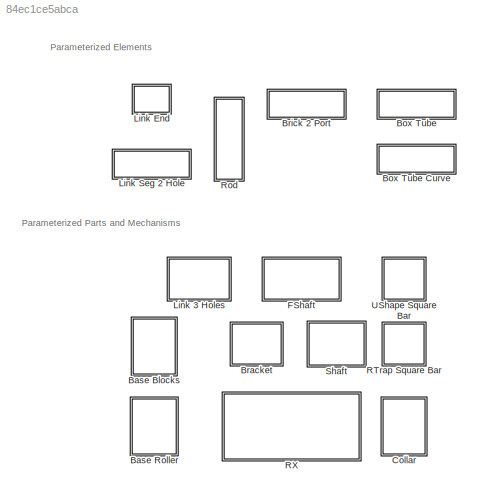
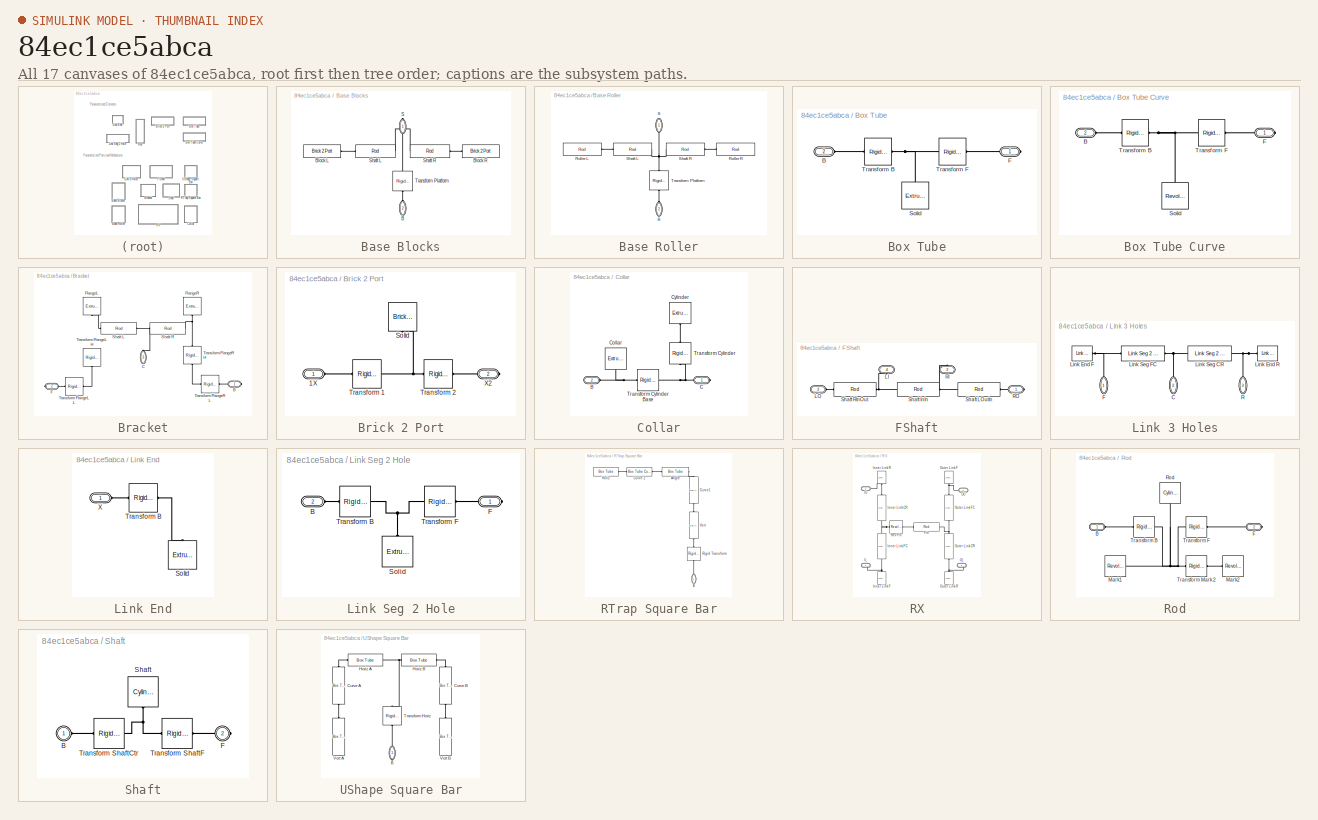
[diagram: thumbnail index - all 17 canvases of the model, root first then tree order]
MODEL slx_84ec1ce5abca
KIND library
CONFIG AbsTol = auto
CONFIG EnableMultiTasking = on
CONFIG FixedStep = auto
CONFIG MaxStep = auto
CONFIG MinStep = auto
CONFIG RelTol = 1e-3
CONFIG SampleTimeConstraint = Unconstrained
CONFIG Solver = ode45
CONFIG SolverName = ode45
CONFIG StartTime = 0.0
CONFIG StopTime = 10.0
BLOCK [SubSystem] Base Blocks
  NameLocation = left
  Ports = [0, 0, 0, 0, 0, 1, 1]
  RequestExecContextInheritance = off
BLOCK [PMIOPort] Base Blocks/B
  NameLocation = right
  Port = 2
  Side = Left
BLOCK [Reference] Base Blocks/Block L  REF=$bdroot/Brick 2 Port
  Ports = [0, 0, 0, 0, 0, 1, 1]
  SourceBlock = $bdroot/Brick 2 Port
  SourceType = Brick with 2 Interface Frames
BLOCK [Reference] Base Blocks/Block R  REF=$bdroot/Brick 2 Port
  Ports = [0, 0, 0, 0, 0, 1, 1]
  SourceBlock = $bdroot/Brick 2 Port
  SourceType = Brick with 2 Interface Frames
BLOCK [PMIOPort] Base Blocks/S
  NameLocation = right
  Side = Right
BLOCK [Reference] Base Blocks/Shaft L  REF=$bdroot/Rod
  Ports = [0, 0, 0, 0, 0, 1, 1]
  SourceBlock = $bdroot/Rod
  SourceType = Rod
BLOCK [Reference] Base Blocks/Shaft R  REF=$bdroot/Rod
  Ports = [0, 0, 0, 0, 0, 1, 1]
  SourceBlock = $bdroot/Rod
  SourceType = Rod
BLOCK [Reference] Base Blocks/Transform Platform  REF=sm_lib/Frames and
Transforms/Rigid
Transform
  NameLocation = left
  Ports = [0, 0, 0, 0, 0, 1, 1]
  SourceBlock = sm_lib/Frames and\nTransforms/Rigid\nTransform
  SourceProductBaseCode = MS
  SourceType = Rigid\nTransform
BLOCK [SubSystem] Base Roller
  NameLocation = left
  Ports = [0, 0, 0, 0, 0, 1, 1]
  RequestExecContextInheritance = off
BLOCK [PMIOPort] Base Roller/B
  NameLocation = right
  Port = 2
  Side = Left
BLOCK [Reference] Base Roller/Roller L  REF=$bdroot/Rod
  Ports = [0, 0, 0, 0, 0, 1, 1]
  SourceBlock = $bdroot/Rod
  SourceType = Rod
BLOCK [Reference] Base Roller/Roller R  REF=$bdroot/Rod
  Ports = [0, 0, 0, 0, 0, 1, 1]
  SourceBlock = $bdroot/Rod
  SourceType = Rod
BLOCK [PMIOPort] Base Roller/S
  NameLocation = right
  Side = Right
BLOCK [Reference] Base Roller/Shaft L  REF=$bdroot/Rod
  Ports = [0, 0, 0, 0, 0, 1, 1]
  SourceBlock = $bdroot/Rod
  SourceType = Rod
BLOCK [Reference] Base Roller/Shaft R  REF=$bdroot/Rod
  Ports = [0, 0, 0, 0, 0, 1, 1]
  SourceBlock = $bdroot/Rod
  SourceType = Rod
BLOCK [Reference] Base Roller/Transform Platform  REF=sm_lib/Frames and
Transforms/Rigid
Transform
  NameLocation = left
  Ports = [0, 0, 0, 0, 0, 1, 1]
  SourceBlock = sm_lib/Frames and\nTransforms/Rigid\nTransform
  SourceProductBaseCode = MS
  SourceType = Rigid\nTransform
BLOCK [SubSystem] Box Tube
  Ports = [0, 0, 0, 0, 0, 1, 1]
  RequestExecContextInheritance = off
BLOCK [SubSystem] Box Tube Curve
  Ports = [0, 0, 0, 0, 0, 1, 1]
  RequestExecContextInheritance = off
BLOCK [PMIOPort] Box Tube Curve/B
  Port = 2
  Side = Left
BLOCK [PMIOPort] Box Tube Curve/F
  Side = Right
BLOCK [Reference] Box Tube Curve/Solid  REF=sm_lib/Body Elements/Revolved Solid
  NameLocation = right
  Ports = [0, 0, 0, 0, 0, 0, 1]
  SourceBlock = sm_lib/Body Elements/Revolved Solid
  SourceProductBaseCode = MS
  SourceType = Revolved Solid
BLOCK [Reference] Box Tube Curve/Transform B  REF=sm_lib/Frames and
Transforms/Rigid
Transform
  Ports = [0, 0, 0, 0, 0, 1, 1]
  SourceBlock = sm_lib/Frames and\nTransforms/Rigid\nTransform
  SourceProductBaseCode = MS
  SourceType = Rigid\nTransform
BLOCK [Reference] Box Tube Curve/Transform F  REF=sm_lib/Frames and
Transforms/Rigid
Transform
  Ports = [0, 0, 0, 0, 0, 1, 1]
  SourceBlock = sm_lib/Frames and\nTransforms/Rigid\nTransform
  SourceProductBaseCode = MS
  SourceType = Rigid\nTransform
BLOCK [PMIOPort] Box Tube/B
  Port = 2
  Side = Left
BLOCK [PMIOPort] Box Tube/F
  Side = Right
BLOCK [Reference] Box Tube/Solid  REF=sm_lib/Body Elements/Extruded Solid
  NameLocation = left
  Ports = [0, 0, 0, 0, 0, 0, 1]
  SourceBlock = sm_lib/Body Elements/Extruded Solid
  SourceProductBaseCode = MS
  SourceType = Extruded Solid
BLOCK [Reference] Box Tube/Transform B  REF=sm_lib/Frames and
Transforms/Rigid
Transform
  Ports = [0, 0, 0, 0, 0, 1, 1]
  SourceBlock = sm_lib/Frames and\nTransforms/Rigid\nTransform
  SourceProductBaseCode = MS
  SourceType = Rigid\nTransform
BLOCK [Reference] Box Tube/Transform F  REF=sm_lib/Frames and
Transforms/Rigid
Transform
  Ports = [0, 0, 0, 0, 0, 1, 1]
  SourceBlock = sm_lib/Frames and\nTransforms/Rigid\nTransform
  SourceProductBaseCode = MS
  SourceType = Rigid\nTransform
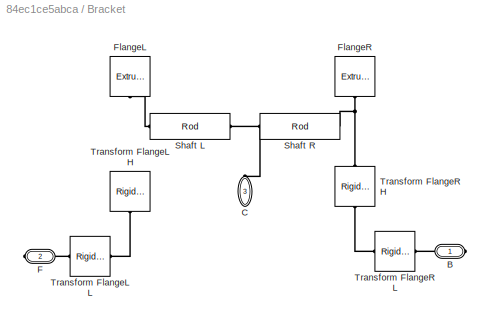
BLOCK [SubSystem] Bracket
  NameLocation = left
  Ports = [0, 0, 0, 0, 0, 1, 2]
  RequestExecContextInheritance = off
BLOCK [PMIOPort] Bracket/B
  NameLocation = top
  Side = Right
BLOCK [PMIOPort] Bracket/C
  NameLocation = left
  Port = 3
  Side = Left
BLOCK [PMIOPort] Bracket/F
  NameLocation = top
  Port = 2
  Side = Right
BLOCK [Reference] Bracket/FlangeL  REF=sm_lib/Body Elements/Extruded Solid
  NameLocation = left
  Ports = [0, 0, 0, 0, 0, 0, 1]
  SourceBlock = sm_lib/Body Elements/Extruded Solid
  SourceProductBaseCode = MS
  SourceType = Extruded Solid
BLOCK [Reference] Bracket/FlangeR  REF=sm_lib/Body Elements/Extruded Solid
  NameLocation = right
  Ports = [0, 0, 0, 0, 0, 0, 1]
  SourceBlock = sm_lib/Body Elements/Extruded Solid
  SourceProductBaseCode = MS
  SourceType = Extruded Solid
BLOCK [Reference] Bracket/Shaft L  REF=$bdroot/Rod
  Ports = [0, 0, 0, 0, 0, 1, 1]
  SourceBlock = $bdroot/Rod
  SourceType = Rod
BLOCK [Reference] Bracket/Shaft R  REF=$bdroot/Rod
  Ports = [0, 0, 0, 0, 0, 1, 1]
  SourceBlock = $bdroot/Rod
  SourceType = Rod
BLOCK [Reference] Bracket/Transform FlangeL H  REF=sm_lib/Frames and
Transforms/Rigid
Transform
  NameLocation = left
  Ports = [0, 0, 0, 0, 0, 1, 1]
  SourceBlock = sm_lib/Frames and\nTransforms/Rigid\nTransform
  SourceProductBaseCode = MS
  SourceType = Rigid\nTransform
BLOCK [Reference] Bracket/Transform FlangeL L  REF=sm_lib/Frames and
Transforms/Rigid
Transform
  Ports = [0, 0, 0, 0, 0, 1, 1]
  SourceBlock = sm_lib/Frames and\nTransforms/Rigid\nTransform
  SourceProductBaseCode = MS
  SourceType = Rigid\nTransform
BLOCK [Reference] Bracket/Transform FlangeR H  REF=sm_lib/Frames and
Transforms/Rigid
Transform
  NameLocation = right
  Ports = [0, 0, 0, 0, 0, 1, 1]
  SourceBlock = sm_lib/Frames and\nTransforms/Rigid\nTransform
  SourceProductBaseCode = MS
  SourceType = Rigid\nTransform
BLOCK [Reference] Bracket/Transform FlangeR L  REF=sm_lib/Frames and
Transforms/Rigid
Transform
  Ports = [0, 0, 0, 0, 0, 1, 1]
  SourceBlock = sm_lib/Frames and\nTransforms/Rigid\nTransform
  SourceProductBaseCode = MS
  SourceType = Rigid\nTransform
BLOCK [SubSystem] Brick 2 Port
  Ports = [0, 0, 0, 0, 0, 1, 1]
  RequestExecContextInheritance = off
BLOCK [PMIOPort] Brick 2 Port/1X
  Side = Left
BLOCK [Reference] Brick 2 Port/Solid  REF=sm_lib/Body Elements/Brick Solid
  NameLocation = left
  Ports = [0, 0, 0, 0, 0, 0, 1]
  SourceBlock = sm_lib/Body Elements/Brick Solid
  SourceProductBaseCode = MS
  SourceType = Brick Solid
BLOCK [Reference] Brick 2 Port/Transform 1  REF=sm_lib/Frames and
Transforms/Rigid
Transform
  Ports = [0, 0, 0, 0, 0, 1, 1]
  SourceBlock = sm_lib/Frames and\nTransforms/Rigid\nTransform
  SourceProductBaseCode = MS
  SourceType = Rigid\nTransform
BLOCK [Reference] Brick 2 Port/Transform 2  REF=sm_lib/Frames and
Transforms/Rigid
Transform
  Ports = [0, 0, 0, 0, 0, 1, 1]
  SourceBlock = sm_lib/Frames and\nTransforms/Rigid\nTransform
  SourceProductBaseCode = MS
  SourceType = Rigid\nTransform
BLOCK [PMIOPort] Brick 2 Port/X2
  Port = 2
  Side = Right
BLOCK [SubSystem] Collar
  NameLocation = right
  Ports = [0, 0, 0, 0, 0, 1, 1]
  RequestExecContextInheritance = off
BLOCK [PMIOPort] Collar/B
  NameLocation = top
  Port = 2
  Side = Left
BLOCK [PMIOPort] Collar/C
  NameLocation = top
  Side = Right
BLOCK [Reference] Collar/Collar  REF=sm_lib/Body Elements/Extruded Solid
  NameLocation = left
  Ports = [0, 0, 0, 0, 0, 0, 1]
  SourceBlock = sm_lib/Body Elements/Extruded Solid
  SourceProductBaseCode = MS
  SourceType = Extruded Solid
BLOCK [Reference] Collar/Cylinder  REF=sm_lib/Body Elements/Extruded Solid
  NameLocation = left
  Ports = [0, 0, 0, 0, 0, 0, 1]
  SourceBlock = sm_lib/Body Elements/Extruded Solid
  SourceProductBaseCode = MS
  SourceType = Extruded Solid
BLOCK [Reference] Collar/Transform Cylinder  REF=sm_lib/Frames and
Transforms/Rigid
Transform
  NameLocation = left
  Ports = [0, 0, 0, 0, 0, 1, 1]
  SourceBlock = sm_lib/Frames and\nTransforms/Rigid\nTransform
  SourceProductBaseCode = MS
  SourceType = Rigid\nTransform
BLOCK [Reference] Collar/Transform Cylinder Base  REF=sm_lib/Frames and
Transforms/Rigid
Transform
  Ports = [0, 0, 0, 0, 0, 1, 1]
  SourceBlock = sm_lib/Frames and\nTransforms/Rigid\nTransform
  SourceProductBaseCode = MS
  SourceType = Rigid\nTransform
BLOCK [SubSystem] FShaft
  Ports = [0, 0, 0, 0, 0, 2, 2]
  RequestExecContextInheritance = off
BLOCK [PMIOPort] FShaft/LI
  NameLocation = left
  Port = 4
  Side = Left
BLOCK [PMIOPort] FShaft/LO
  Port = 3
  Side = Left
BLOCK [PMIOPort] FShaft/RI
  NameLocation = left
  Port = 2
  Side = Right
BLOCK [PMIOPort] FShaft/RO
  Side = Right
BLOCK [Reference] FShaft/Shaft InIn  REF=$bdroot/Rod
  Ports = [0, 0, 0, 0, 0, 1, 1]
  SourceBlock = $bdroot/Rod
  SourceType = Rod
BLOCK [Reference] FShaft/Shaft LOutIn  REF=$bdroot/Rod
  Ports = [0, 0, 0, 0, 0, 1, 1]
  SourceBlock = $bdroot/Rod
  SourceType = Rod
BLOCK [Reference] FShaft/Shaft RInOut  REF=$bdroot/Rod
  Ports = [0, 0, 0, 0, 0, 1, 1]
  SourceBlock = $bdroot/Rod
  SourceType = Rod
BLOCK [SubSystem] Link 3 Holes
  NameLocation = left
  Ports = [0, 0, 0, 0, 0, 0, 3]
  RequestExecContextInheritance = off
BLOCK [PMIOPort] Link 3 Holes/C
  NameLocation = left
  Port = 2
  Side = Right
BLOCK [PMIOPort] Link 3 Holes/F
  NameLocation = right
  Side = Right
BLOCK [Reference] Link 3 Holes/Link End F  REF=$bdroot/Link End
  Ports = [0, 0, 0, 0, 0, 1]
  SourceBlock = $bdroot/Link End
  SourceType = Link End
BLOCK [Reference] Link 3 Holes/Link End R  REF=$bdroot/Link End
  Ports = [0, 0, 0, 0, 0, 1]
  SourceBlock = $bdroot/Link End
  SourceType = Link End
BLOCK [Reference] Link 3 Holes/Link Seg CR  REF=$bdroot/Link Seg 2 Hole
  Ports = [0, 0, 0, 0, 0, 1, 1]
  SourceBlock = $bdroot/Link Seg 2 Hole
  SourceType = Link Segment with 2 Holes
BLOCK [Reference] Link 3 Holes/Link Seg FC  REF=$bdroot/Link Seg 2 Hole
  Ports = [0, 0, 0, 0, 0, 1, 1]
  SourceBlock = $bdroot/Link Seg 2 Hole
  SourceType = Link Segment with 2 Holes
BLOCK [PMIOPort] Link 3 Holes/R
  NameLocation = left
  Port = 3
  Side = Right
BLOCK [SubSystem] Link End
  Ports = [0, 0, 0, 0, 0, 1]
  RequestExecContextInheritance = off
BLOCK [Reference] Link End/Solid  REF=sm_lib/Body Elements/Extruded Solid
  NameLocation = right
  Ports = [0, 0, 0, 0, 0, 0, 1]
  SourceBlock = sm_lib/Body Elements/Extruded Solid
  SourceProductBaseCode = MS
  SourceType = Extruded Solid
BLOCK [Reference] Link End/Transform B  REF=sm_lib/Frames and
Transforms/Rigid
Transform
  Ports = [0, 0, 0, 0, 0, 1, 1]
  SourceBlock = sm_lib/Frames and\nTransforms/Rigid\nTransform
  SourceProductBaseCode = MS
  SourceType = Rigid\nTransform
BLOCK [PMIOPort] Link End/X
  Side = Left
BLOCK [SubSystem] Link Seg 2 Hole
  Ports = [0, 0, 0, 0, 0, 1, 1]
  RequestExecContextInheritance = off
BLOCK [PMIOPort] Link Seg 2 Hole/B
  Port = 2
  Side = Left
BLOCK [PMIOPort] Link Seg 2 Hole/F
  Side = Right
BLOCK [Reference] Link Seg 2 Hole/Solid  REF=sm_lib/Body Elements/Extruded Solid
  NameLocation = right
  Ports = [0, 0, 0, 0, 0, 0, 1]
  SourceBlock = sm_lib/Body Elements/Extruded Solid
  SourceProductBaseCode = MS
  SourceType = Extruded Solid
BLOCK [Reference] Link Seg 2 Hole/Transform B  REF=sm_lib/Frames and
Transforms/Rigid
Transform
  Ports = [0, 0, 0, 0, 0, 1, 1]
  SourceBlock = sm_lib/Frames and\nTransforms/Rigid\nTransform
  SourceProductBaseCode = MS
  SourceType = Rigid\nTransform
BLOCK [Reference] Link Seg 2 Hole/Transform F  REF=sm_lib/Frames and
Transforms/Rigid
Transform
  Ports = [0, 0, 0, 0, 0, 1, 1]
  SourceBlock = sm_lib/Frames and\nTransforms/Rigid\nTransform
  SourceProductBaseCode = MS
  SourceType = Rigid\nTransform
BLOCK [SubSystem] RTrap Square Bar
  NameLocation = right
  Ports = [0, 0, 0, 0, 0, 0, 1]
  RequestExecContextInheritance = off
BLOCK [Reference] RTrap Square Bar/Angle  REF=$bdroot/Box Tube
  Ports = [0, 0, 0, 0, 0, 1, 1]
  SourceBlock = $bdroot/Box Tube
  SourceType = Box Tube
BLOCK [PMIOPort] RTrap Square Bar/B
  NameLocation = right
  Side = Right
BLOCK [Reference] RTrap Square Bar/Curve 2  REF=$bdroot/Box Tube Curve
  Ports = [0, 0, 0, 0, 0, 1, 1]
  SourceBlock = $bdroot/Box Tube Curve
  SourceType = Box Tube with Curve
BLOCK [Reference] RTrap Square Bar/Curve1  REF=$bdroot/Box Tube Curve
  NameLocation = left
  Ports = [0, 0, 0, 0, 0, 1, 1]
  SourceBlock = $bdroot/Box Tube Curve
  SourceType = Box Tube with Curve
BLOCK [Reference] RTrap Square Bar/Horiz  REF=$bdroot/Box Tube
  Ports = [0, 0, 0, 0, 0, 1, 1]
  SourceBlock = $bdroot/Box Tube
  SourceType = Box Tube
BLOCK [Reference] RTrap Square Bar/Rigid Transform  REF=sm_lib/Frames and
Transforms/Rigid
Transform
  NameLocation = left
  Ports = [0, 0, 0, 0, 0, 1, 1]
  SourceBlock = sm_lib/Frames and\nTransforms/Rigid\nTransform
  SourceProductBaseCode = MS
  SourceType = Rigid\nTransform
BLOCK [Reference] RTrap Square Bar/Vert  REF=$bdroot/Box Tube
  NameLocation = left
  Ports = [0, 0, 0, 0, 0, 1, 1]
  SourceBlock = $bdroot/Box Tube
  SourceType = Box Tube
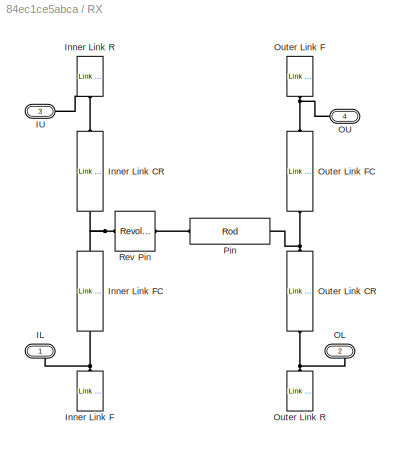
BLOCK [SubSystem] RX
  NameLocation = left
  Ports = [0, 0, 0, 0, 0, 2, 2]
  RequestExecContextInheritance = off
BLOCK [PMIOPort] RX/IL
  Side = Right
BLOCK [PMIOPort] RX/IU
  Port = 3
  Side = Left
BLOCK [Reference] RX/Inner Link CR  REF=$bdroot/Link Seg 2 Hole
  NameLocation = right
  Ports = [0, 0, 0, 0, 0, 1, 1]
  SourceBlock = $bdroot/Link Seg 2 Hole
  SourceType = Link Segment with 2 Holes
BLOCK [Reference] RX/Inner Link F  REF=$bdroot/Link End
  NameLocation = right
  Ports = [0, 0, 0, 0, 0, 1]
  SourceBlock = $bdroot/Link End
  SourceType = Link End
BLOCK [Reference] RX/Inner Link FC  REF=$bdroot/Link Seg 2 Hole
  NameLocation = right
  Ports = [0, 0, 0, 0, 0, 1, 1]
  SourceBlock = $bdroot/Link Seg 2 Hole
  SourceType = Link Segment with 2 Holes
BLOCK [Reference] RX/Inner Link R  REF=$bdroot/Link End
  NameLocation = right
  Ports = [0, 0, 0, 0, 0, 1]
  SourceBlock = $bdroot/Link End
  SourceType = Link End
BLOCK [PMIOPort] RX/OL
  Port = 2
  Side = Right
BLOCK [PMIOPort] RX/OU
  Port = 4
  Side = Left
BLOCK [Reference] RX/Outer Link CR  REF=$bdroot/Link Seg 2 Hole
  NameLocation = right
  Ports = [0, 0, 0, 0, 0, 1, 1]
  SourceBlock = $bdroot/Link Seg 2 Hole
  SourceType = Link Segment with 2 Holes
BLOCK [Reference] RX/Outer Link F  REF=$bdroot/Link End
  NameLocation = right
  Ports = [0, 0, 0, 0, 0, 1]
  SourceBlock = $bdroot/Link End
  SourceType = Link End
BLOCK [Reference] RX/Outer Link FC  REF=$bdroot/Link Seg 2 Hole
  NameLocation = right
  Ports = [0, 0, 0, 0, 0, 1, 1]
  SourceBlock = $bdroot/Link Seg 2 Hole
  SourceType = Link Segment with 2 Holes
BLOCK [Reference] RX/Outer Link R  REF=$bdroot/Link End
  NameLocation = right
  Ports = [0, 0, 0, 0, 0, 1]
  SourceBlock = $bdroot/Link End
  SourceType = Link End
BLOCK [Reference] RX/Pin  REF=$bdroot/Rod
  Ports = [0, 0, 0, 0, 0, 1, 1]
  SourceBlock = $bdroot/Rod
  SourceType = Rod
BLOCK [Reference] RX/Rev Pin  REF=sm_lib/Joints/Revolute Joint
  Ports = [0, 0, 0, 0, 0, 1, 1]
  SourceBlock = sm_lib/Joints/Revolute Joint
  SourceProductBaseCode = MS
  SourceType = Revolute Joint
BLOCK [SubSystem] Rod
  NameLocation = right
  Ports = [0, 0, 0, 0, 0, 1, 1]
  RequestExecContextInheritance = off
BLOCK [PMIOPort] Rod/B
  Side = Left
BLOCK [PMIOPort] Rod/F
  Port = 2
  Side = Right
BLOCK [Reference] Rod/Mark1  REF=sm_lib/Body Elements/Revolved Solid
  Ports = [0, 0, 0, 0, 0, 0, 1]
  SourceBlock = sm_lib/Body Elements/Revolved Solid
  SourceProductBaseCode = MS
  SourceType = Revolved Solid
BLOCK [Reference] Rod/Mark2  REF=sm_lib/Body Elements/Revolved Solid
  Ports = [0, 0, 0, 0, 0, 0, 1]
  SourceBlock = sm_lib/Body Elements/Revolved Solid
  SourceProductBaseCode = MS
  SourceType = Revolved Solid
BLOCK [Reference] Rod/Rod  REF=sm_lib/Body Elements/Cylindrical Solid
  NameLocation = right
  Ports = [0, 0, 0, 0, 0, 0, 1]
  SourceBlock = sm_lib/Body Elements/Cylindrical Solid
  SourceProductBaseCode = MS
  SourceType = Cylindrical Solid
BLOCK [Reference] Rod/Transform B  REF=sm_lib/Frames and
Transforms/Rigid
Transform
  Ports = [0, 0, 0, 0, 0, 1, 1]
  SourceBlock = sm_lib/Frames and\nTransforms/Rigid\nTransform
  SourceProductBaseCode = MS
  SourceType = Rigid\nTransform
BLOCK [Reference] Rod/Transform F  REF=sm_lib/Frames and
Transforms/Rigid
Transform
  Ports = [0, 0, 0, 0, 0, 1, 1]
  SourceBlock = sm_lib/Frames and\nTransforms/Rigid\nTransform
  SourceProductBaseCode = MS
  SourceType = Rigid\nTransform
BLOCK [Reference] Rod/Transform Mark 2  REF=sm_lib/Frames and
Transforms/Rigid
Transform
  Ports = [0, 0, 0, 0, 0, 1, 1]
  SourceBlock = sm_lib/Frames and\nTransforms/Rigid\nTransform
  SourceProductBaseCode = MS
  SourceType = Rigid\nTransform
BLOCK [SubSystem] Shaft
  Ports = [0, 0, 0, 0, 0, 1, 1]
  RequestExecContextInheritance = off
BLOCK [PMIOPort] Shaft/B
  Side = Left
BLOCK [PMIOPort] Shaft/F
  Port = 2
  Side = Right
BLOCK [Reference] Shaft/Shaft  REF=sm_lib/Body Elements/Cylindrical Solid
  NameLocation = left
  Ports = [0, 0, 0, 0, 0, 0, 1]
  SourceBlock = sm_lib/Body Elements/Cylindrical Solid
  SourceProductBaseCode = MS
  SourceType = Cylindrical Solid
BLOCK [Reference] Shaft/Transform ShaftCtr  REF=sm_lib/Frames and
Transforms/Rigid
Transform
  Ports = [0, 0, 0, 0, 0, 1, 1]
  SourceBlock = sm_lib/Frames and\nTransforms/Rigid\nTransform
  SourceProductBaseCode = MS
  SourceType = Rigid\nTransform
BLOCK [Reference] Shaft/Transform ShaftF  REF=sm_lib/Frames and
Transforms/Rigid
Transform
  Ports = [0, 0, 0, 0, 0, 1, 1]
  SourceBlock = sm_lib/Frames and\nTransforms/Rigid\nTransform
  SourceProductBaseCode = MS
  SourceType = Rigid\nTransform
BLOCK [SubSystem] UShape Square Bar
  NameLocation = right
  Ports = [0, 0, 0, 0, 0, 0, 1]
  RequestExecContextInheritance = off
BLOCK [PMIOPort] UShape Square Bar/B
  NameLocation = right
  Side = Right
BLOCK [Reference] UShape Square Bar/Curve A  REF=$bdroot/Box Tube Curve
  NameLocation = right
  Ports = [0, 0, 0, 0, 0, 1, 1]
  SourceBlock = $bdroot/Box Tube Curve
  SourceType = Box Tube with Curve
BLOCK [Reference] UShape Square Bar/Curve B  REF=$bdroot/Box Tube Curve
  NameLocation = left
  Ports = [0, 0, 0, 0, 0, 1, 1]
  SourceBlock = $bdroot/Box Tube Curve
  SourceType = Box Tube with Curve
BLOCK [Reference] UShape Square Bar/Horiz A  REF=$bdroot/Box Tube
  Ports = [0, 0, 0, 0, 0, 1, 1]
  SourceBlock = $bdroot/Box Tube
  SourceType = Box Tube
BLOCK [Reference] UShape Square Bar/Horiz B  REF=$bdroot/Box Tube
  Ports = [0, 0, 0, 0, 0, 1, 1]
  SourceBlock = $bdroot/Box Tube
  SourceType = Box Tube
BLOCK [Reference] UShape Square Bar/Transform Horiz  REF=sm_lib/Frames and
Transforms/Rigid
Transform
  NameLocation = right
  Ports = [0, 0, 0, 0, 0, 1, 1]
  SourceBlock = sm_lib/Frames and\nTransforms/Rigid\nTransform
  SourceProductBaseCode = MS
  SourceType = Rigid\nTransform
BLOCK [Reference] UShape Square Bar/Vert A  REF=$bdroot/Box Tube
  NameLocation = right
  Ports = [0, 0, 0, 0, 0, 1, 1]
  SourceBlock = $bdroot/Box Tube
  SourceType = Box Tube
BLOCK [Reference] UShape Square Bar/Vert B  REF=$bdroot/Box Tube
  NameLocation = left
  Ports = [0, 0, 0, 0, 0, 1, 1]
  SourceBlock = $bdroot/Box Tube
  SourceType = Box Tube
ANNOTATION (root): Parameterized Elements
ANNOTATION (root): Parameterized Parts and Mechanisms
PLINE Base Blocks/B:RConn1 -- Base Blocks/Transform Platform:RConn1
PLINE Base Blocks/Block L:RConn1 -- Base Blocks/Shaft L:RConn1
PLINE Base Blocks/Block R:RConn1 -- Base Blocks/Shaft R:RConn1
PNET net1: Base Blocks/S:RConn1 -- Base Blocks/Shaft L:LConn1 -- Base Blocks/Shaft R:LConn1 -- Base Blocks/Transform Platform:LConn1
PLINE Base Roller/B:RConn1 -- Base Roller/Transform Platform:RConn1
PLINE Base Roller/Roller L:LConn1 -- Base Roller/Shaft L:RConn1
PLINE Base Roller/Roller R:LConn1 -- Base Roller/Shaft R:RConn1
PNET net2: Base Roller/S:RConn1 -- Base Roller/Shaft L:LConn1 -- Base Roller/Shaft R:LConn1 -- Base Roller/Transform Platform:LConn1
PLINE Box Tube/B:RConn1 -- Box Tube/Transform B:LConn1
PLINE Box Tube/F:RConn1 -- Box Tube/Transform F:RConn1
PNET net3: Box Tube/Solid:RConn1 -- Box Tube/Transform B:RConn1 -- Box Tube/Transform F:LConn1
PLINE Bracket/B:RConn1 -- Bracket/Transform FlangeR L:LConn1
PNET net4: Bracket/C:RConn1 -- Bracket/Shaft L:RConn1 -- Bracket/Shaft R:LConn1
PLINE Bracket/F:RConn1 -- Bracket/Transform FlangeL L:LConn1
PLINE Bracket/FlangeL:RConn1 -- Bracket/Shaft L:LConn1
PNET net5: Bracket/FlangeR:RConn1 -- Bracket/Shaft R:RConn1 -- Bracket/Transform FlangeR H:RConn1
PLINE Bracket/Transform FlangeL H:LConn1 -- Bracket/Transform FlangeL L:RConn1
PLINE Bracket/Transform FlangeR H:LConn1 -- Bracket/Transform FlangeR L:RConn1
PNET net6: Collar/B:RConn1 -- Collar/Collar:RConn1 -- Collar/Transform Cylinder Base:LConn1
PNET net7: Collar/C:RConn1 -- Collar/Transform Cylinder Base:RConn1 -- Collar/Transform Cylinder:LConn1
PLINE Collar/Cylinder:RConn1 -- Collar/Transform Cylinder:RConn1
PNET net8: FShaft/LI:RConn1 -- FShaft/Shaft InIn:RConn1 -- FShaft/Shaft RInOut:LConn1
PLINE FShaft/LO:RConn1 -- FShaft/Shaft RInOut:RConn1
PNET net9: FShaft/RI:RConn1 -- FShaft/Shaft InIn:LConn1 -- FShaft/Shaft LOutIn:RConn1
PLINE FShaft/RO:RConn1 -- FShaft/Shaft LOutIn:LConn1
PNET net10: Link 3 Holes/C:RConn1 -- Link 3 Holes/Link Seg CR:LConn1 -- Link 3 Holes/Link Seg FC:RConn1
PNET net11: Link 3 Holes/F:RConn1 -- Link 3 Holes/Link End F:LConn1 -- Link 3 Holes/Link Seg FC:LConn1
PNET net12: Link 3 Holes/Link End R:LConn1 -- Link 3 Holes/Link Seg CR:RConn1 -- Link 3 Holes/R:RConn1
PLINE Link Seg 2 Hole/B:RConn1 -- Link Seg 2 Hole/Transform B:RConn1
PLINE Link Seg 2 Hole/F:RConn1 -- Link Seg 2 Hole/Transform F:RConn1
PNET net13: Link Seg 2 Hole/Solid:RConn1 -- Link Seg 2 Hole/Transform B:LConn1 -- Link Seg 2 Hole/Transform F:LConn1
PLINE RTrap Square Bar/Angle:LConn1 -- RTrap Square Bar/Curve1:RConn1
PLINE RTrap Square Bar/Angle:RConn1 -- RTrap Square Bar/Curve 2:LConn1
PLINE RTrap Square Bar/B:RConn1 -- RTrap Square Bar/Rigid Transform:LConn1
PLINE RTrap Square Bar/Curve 2:RConn1 -- RTrap Square Bar/Horiz:LConn1
PLINE RTrap Square Bar/Curve1:LConn1 -- RTrap Square Bar/Vert:RConn1
PLINE RTrap Square Bar/Rigid Transform:RConn1 -- RTrap Square Bar/Vert:LConn1
PLINE Shaft/B:RConn1 -- Shaft/Transform ShaftCtr:LConn1
PLINE Shaft/F:RConn1 -- Shaft/Transform ShaftF:RConn1
PNET net14: Shaft/Shaft:RConn1 -- Shaft/Transform ShaftCtr:RConn1 -- Shaft/Transform ShaftF:LConn1
PLINE UShape Square Bar/B:RConn1 -- UShape Square Bar/Transform Horiz:LConn1
PLINE UShape Square Bar/Curve A:LConn1 -- UShape Square Bar/Vert A:RConn1
PLINE UShape Square Bar/Curve A:RConn1 -- UShape Square Bar/Horiz A:LConn1
PLINE UShape Square Bar/Curve B:LConn1 -- UShape Square Bar/Horiz B:RConn1
PLINE UShape Square Bar/Curve B:RConn1 -- UShape Square Bar/Vert B:LConn1
PNET net15: UShape Square Bar/Horiz A:RConn1 -- UShape Square Bar/Horiz B:LConn1 -- UShape Square Bar/Transform Horiz:RConn1
note: PNET lines group multi-terminal physical nets as a canonical sorted terminal list (undirected conserving connections); 2-terminal nets keep the pairwise PLINE form
